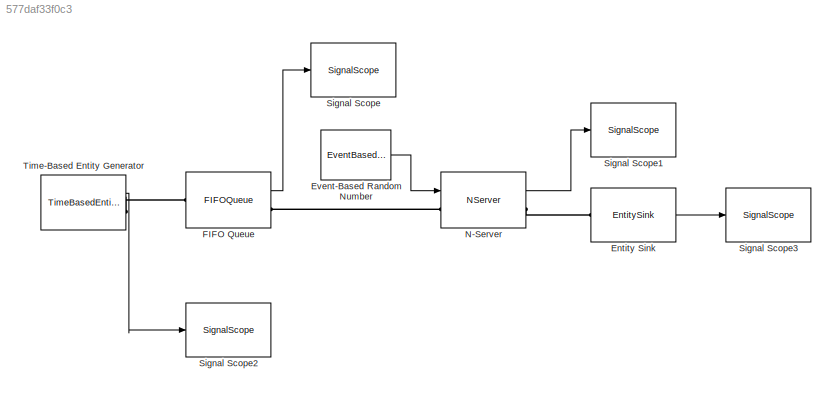
MODEL slx_577daf33f0c3
KIND model
BLOCK [EntitySink] Entity Sink
  OutputPortMap = o0
  Ports = [0, 1, 0, 0, 0, 1]
  StatNumberArrived = on
BLOCK [EventBasedRandomNumber] Event-Based Random Number
  Distribution = Uniform
  OutputPortMap = o0
  Ports = [0, 1]
  Seed = 123456
  maxUnif = 36
  minUnif = 28
BLOCK [FIFOQueue] FIFO Queue
  OutputPortMap = o2
  Ports = [0, 1, 0, 0, 0, 1, 1]
  StatAverageWait = on
BLOCK [NServer] N-Server
  InputPortMap = u0
  NumberOfServers = 2
  OutputPortMap = o4
  Ports = [1, 1, 0, 0, 0, 1, 1]
  ServiceTimeFrom = Signal port t
  StatAverageWait = on
BLOCK [SignalScope] Signal Scope
  CopyFcn = des.scope.CallbackSupport('seCopyFcn',gcbh)
  DeleteFcn = des.scope.CallbackSupport('seDeleteFcn',gcbh)
  InputPortMap = u0
  LoadFcn = des.scope.CallbackSupport('seLoadFcn',gcbh)
  NameChangeFcn = des.scope.CallbackSupport('seNameChangeFcn',gcbh)
  OpenFcn = des.scope.CallbackSupport('seOpenFcn',gcbh)
  Ports = [1]
  PreSaveFcn = des.scope.CallbackSupport('sePreSaveFcn',gcbh)
  StartFcn = des.scope.CallbackSupport('seStartFcn',gcbh)
  StopFcn = des.scope.CallbackSupport('seStopFcn',gcbh)
BLOCK [SignalScope] Signal Scope1
  CopyFcn = des.scope.CallbackSupport('seCopyFcn',gcbh)
  DeleteFcn = des.scope.CallbackSupport('seDeleteFcn',gcbh)
  InputPortMap = u0
  LoadFcn = des.scope.CallbackSupport('seLoadFcn',gcbh)
  NameChangeFcn = des.scope.CallbackSupport('seNameChangeFcn',gcbh)
  OpenFcn = des.scope.CallbackSupport('seOpenFcn',gcbh)
  Ports = [1]
  PreSaveFcn = des.scope.CallbackSupport('sePreSaveFcn',gcbh)
  StartFcn = des.scope.CallbackSupport('seStartFcn',gcbh)
  StopFcn = des.scope.CallbackSupport('seStopFcn',gcbh)
BLOCK [SignalScope] Signal Scope2
  CopyFcn = des.scope.CallbackSupport('seCopyFcn',gcbh)
  DeleteFcn = des.scope.CallbackSupport('seDeleteFcn',gcbh)
  InputPortMap = u0
  LoadFcn = des.scope.CallbackSupport('seLoadFcn',gcbh)
  NameChangeFcn = des.scope.CallbackSupport('seNameChangeFcn',gcbh)
  OpenFcn = des.scope.CallbackSupport('seOpenFcn',gcbh)
  Ports = [1]
  PreSaveFcn = des.scope.CallbackSupport('sePreSaveFcn',gcbh)
  StartFcn = des.scope.CallbackSupport('seStartFcn',gcbh)
  StopFcn = des.scope.CallbackSupport('seStopFcn',gcbh)
BLOCK [SignalScope] Signal Scope3
  CopyFcn = des.scope.CallbackSupport('seCopyFcn',gcbh)
  DeleteFcn = des.scope.CallbackSupport('seDeleteFcn',gcbh)
  InputPortMap = u0
  LoadFcn = des.scope.CallbackSupport('seLoadFcn',gcbh)
  NameChangeFcn = des.scope.CallbackSupport('seNameChangeFcn',gcbh)
  OpenFcn = des.scope.CallbackSupport('seOpenFcn',gcbh)
  Ports = [1]
  PreSaveFcn = des.scope.CallbackSupport('sePreSaveFcn',gcbh)
  StartFcn = des.scope.CallbackSupport('seStartFcn',gcbh)
  StopFcn = des.scope.CallbackSupport('seStopFcn',gcbh)
BLOCK [TimeBasedEntityGenerator] Time-Based Entity Generator
  Distribution = Uniform
  Maximum = 24
  Mean = 12
  Minimum = 12
  OutputPortMap = o0
  Ports = [0, 1, 0, 0, 0, 0, 1]
  StatNumberDeparted = on
LINE Entity Sink:1 -> Signal Scope3:1
LINE Event-Based Random Number:1 -> N-Server:1
LINE FIFO Queue:1 -> Signal Scope:1
LINE N-Server:1 -> Signal Scope1:1
LINE Time-Based Entity Generator:1 -> Signal Scope2:1
PLINE Entity Sink:LConn1 -- N-Server:RConn1
PLINE FIFO Queue:LConn1 -- Time-Based Entity Generator:RConn1
PLINE FIFO Queue:RConn1 -- N-Server:LConn1
